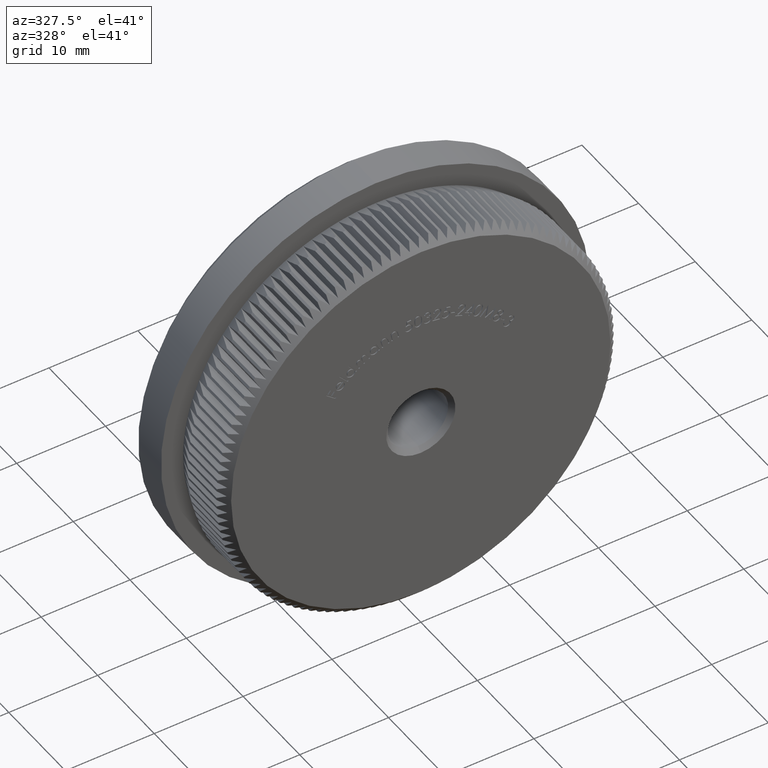
[diagram: clean part render]
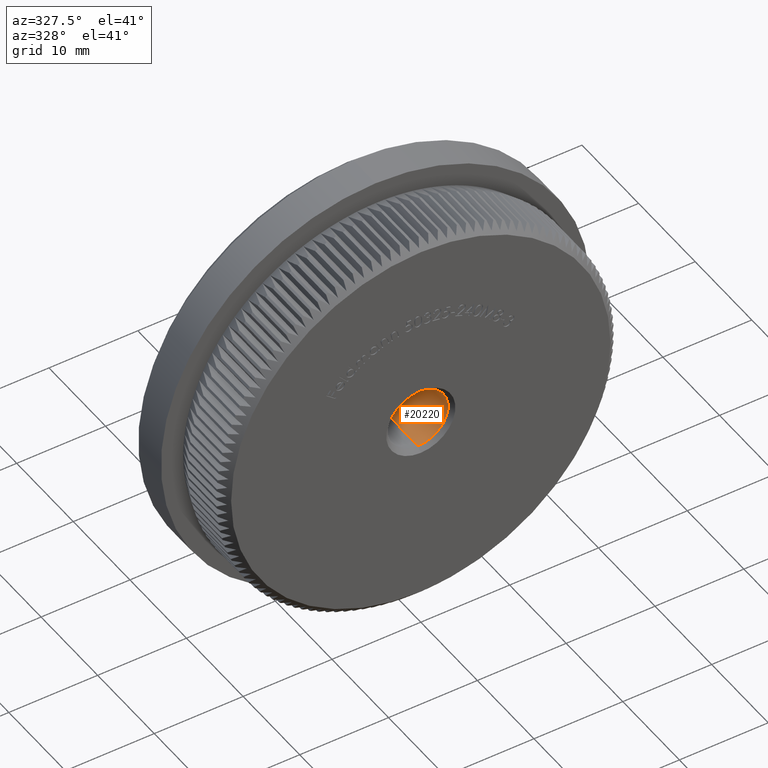
[diagram: same view with one face highlighted and labeled with its STEP entity id]
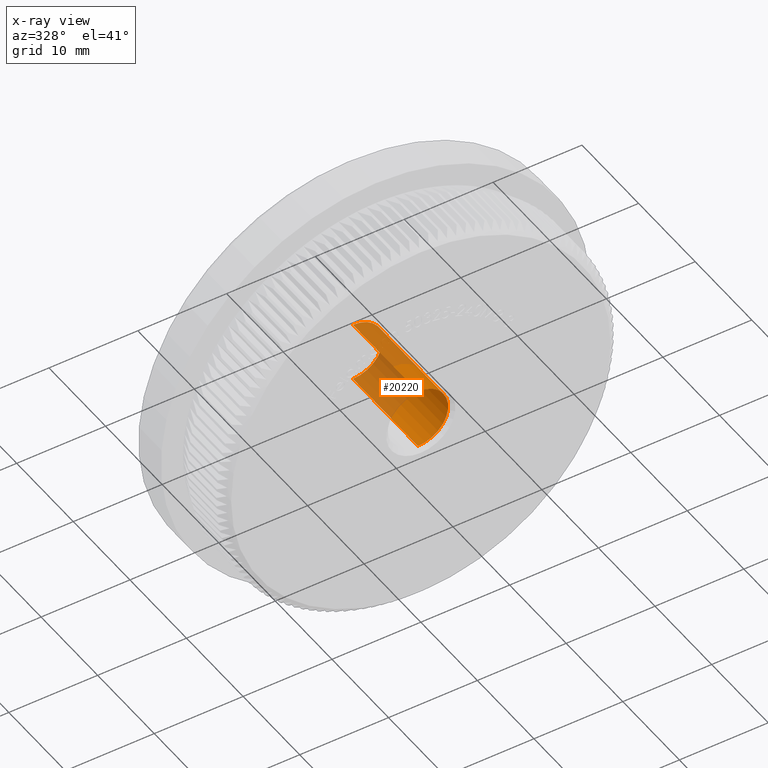
[diagram: x-ray of the same camera — body ghosted, the highlighted face saturated]
A machine part, auxiliary view. The second image highlights one B-rep face of the part: STEP entity #20220.
The next image is the same camera in x-ray: the body ghosted, the highlighted face saturated — about 52% of this face is hidden behind the body in this view.
In plain terms, the highlighted cylindrical surface (edge-blend (fillet) strip) has radius 3.4 mm, axis along (-0, -1, -0).
Its self-contained STEP definition (entity closure, byte-faithful):
#182 = EDGE_CURVE ( 'NONE', #2902, #10059, #26711, .T. ) ;
#352 = DIRECTION ( 'NONE',  ( -0.0000000000000000000, -1.000000000000000000, -0.0000000000000000000 ) ) ;
#475 = CARTESIAN_POINT ( 'NONE',  ( 4.163799117100997600E-016, 11.99999999999998000, 3.399999999999997700 ) ) ;
#1531 = ORIENTED_EDGE ( 'NONE', *, *, #182, .T. ) ;
#2304 = CARTESIAN_POINT ( 'NONE',  ( 0.0000000000000000000, 11.99999999999998000, -3.399999999999997700 ) ) ;
#2902 = VERTEX_POINT ( 'NONE', #2304 ) ;
#4007 = CYLINDRICAL_SURFACE ( 'NONE', #13151, 3.399999999999997700 ) ;
#4645 = VERTEX_POINT ( 'NONE', #20633 ) ;
#6211 = CIRCLE ( 'NONE', #24906, 3.399999999999997700 ) ;
#7372 = VECTOR ( 'NONE', #352, 1000.000000000000000 ) ;
#7584 = DIRECTION ( 'NONE',  ( 0.0000000000000000000, 0.0000000000000000000, 1.000000000000000000 ) ) ;
#8697 = CARTESIAN_POINT ( 'NONE',  ( 4.163799117100997600E-016, 0.0000000000000000000, 3.399999999999997700 ) ) ;
#9027 = DIRECTION ( 'NONE',  ( -0.0000000000000000000, -1.000000000000000000, -0.0000000000000000000 ) ) ;
#9526 = DIRECTION ( 'NONE',  ( 0.0000000000000000000, 0.0000000000000000000, -1.000000000000000000 ) ) ;
#10059 = VERTEX_POINT ( 'NONE', #14677 ) ;
#12008 = CIRCLE ( 'NONE', #25782, 3.399999999999997700 ) ;
#13151 = AXIS2_PLACEMENT_3D ( 'NONE', #17020, #31794, #9526 ) ;
#13852 = VERTEX_POINT ( 'NONE', #475 ) ;
#14677 = CARTESIAN_POINT ( 'NONE',  ( 0.0000000000000000000, 0.5000000000000086600, -3.399999999999997700 ) ) ;
#14742 = DIRECTION ( 'NONE',  ( -0.0000000000000000000, 1.000000000000000000, -0.0000000000000000000 ) ) ;
#15200 = EDGE_CURVE ( 'NONE', #10059, #4645, #12008, .T. ) ;
#15959 = DIRECTION ( 'NONE',  ( 0.0000000000000000000, 0.0000000000000000000, -1.000000000000000000 ) ) ;
#17020 = CARTESIAN_POINT ( 'NONE',  ( 0.0000000000000000000, 0.0000000000000000000, 0.0000000000000000000 ) ) ;
#18594 = ORIENTED_EDGE ( 'NONE', *, *, #19075, .F. ) ;
#19075 = EDGE_CURVE ( 'NONE', #13852, #4645, #29238, .T. ) ;
#20220 = ADVANCED_FACE ( 'NONE', ( #24518 ), #4007, .F. ) ;
#20633 = CARTESIAN_POINT ( 'NONE',  ( 4.163799117100997600E-016, 0.5000000000000086600, 3.399999999999997700 ) ) ;
#23891 = CARTESIAN_POINT ( 'NONE',  ( 0.0000000000000000000, 0.5000000000000086600, 0.0000000000000000000 ) ) ;
#24518 = FACE_OUTER_BOUND ( 'NONE', #31707, .T. ) ;
#24906 = AXIS2_PLACEMENT_3D ( 'NONE', #30291, #14742, #7584 ) ;
#25078 = CARTESIAN_POINT ( 'NONE',  ( 0.0000000000000000000, 0.0000000000000000000, -3.399999999999997700 ) ) ;
#25782 = AXIS2_PLACEMENT_3D ( 'NONE', #23891, #31040, #15959 ) ;
#26655 = EDGE_CURVE ( 'NONE', #13852, #2902, #6211, .T. ) ;
#26711 = LINE ( 'NONE', #25078, #7372 ) ;
#29238 = LINE ( 'NONE', #8697, #32428 ) ;
#30291 = CARTESIAN_POINT ( 'NONE',  ( 0.0000000000000000000, 11.99999999999998000, 0.0000000000000000000 ) ) ;
#30388 = ORIENTED_EDGE ( 'NONE', *, *, #15200, .T. ) ;
#31040 = DIRECTION ( 'NONE',  ( 0.0000000000000000000, -1.000000000000000000, 0.0000000000000000000 ) ) ;
#31146 = ORIENTED_EDGE ( 'NONE', *, *, #26655, .T. ) ;
#31707 = EDGE_LOOP ( 'NONE', ( #18594, #31146, #1531, #30388 ) ) ;
#31794 = DIRECTION ( 'NONE',  ( -0.0000000000000000000, -1.000000000000000000, -0.0000000000000000000 ) ) ;
#32428 = VECTOR ( 'NONE', #9027, 1000.000000000000000 ) ;